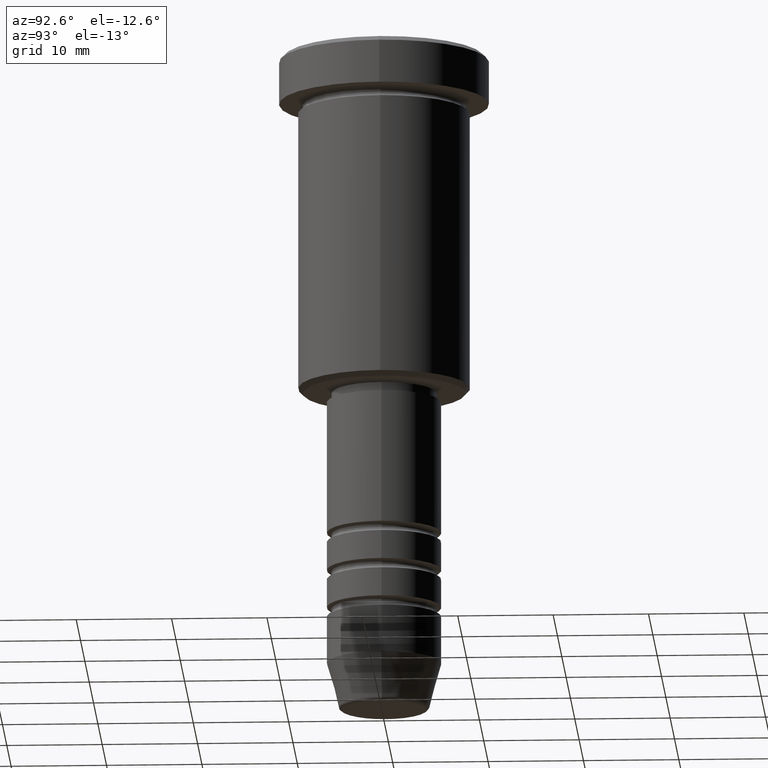
[diagram: clean part render]
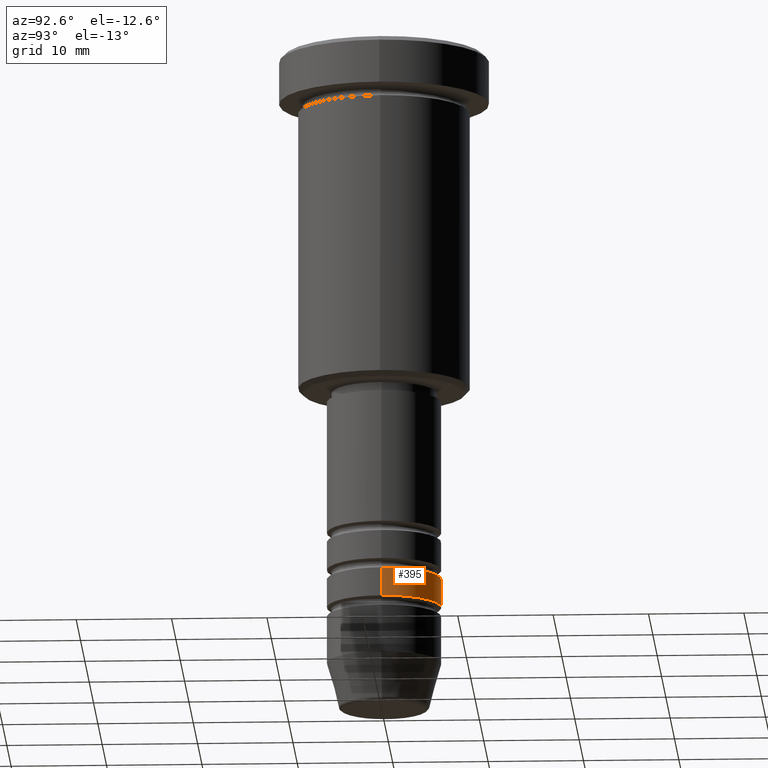
[diagram: same view with one face highlighted and labeled with its STEP entity id]
A machine part, auxiliary view. The second image highlights one B-rep face of the part: STEP entity #395.
In plain terms, the highlighted cylindrical surface (partial cylindrical patch) has radius 6 mm, axis along (-0, -0, 1).
Its self-contained STEP definition (entity closure, byte-faithful):
#37 = CARTESIAN_POINT ( 'NONE',  ( -6.000000000000000000, 7.347880794884119736E-16, 0.000000000000000000 ) ) ;
#49 = CARTESIAN_POINT ( 'NONE',  ( 0.000000000000000000, 0.000000000000000000, -58.99999999999999289 ) ) ;
#72 = DIRECTION ( 'NONE',  ( 1.000000000000000000, 0.000000000000000000, 0.000000000000000000 ) ) ;
#85 = ORIENTED_EDGE ( 'NONE', *, *, #1147, .T. ) ;
#156 = EDGE_CURVE ( 'NONE', #901, #719, #841, .T. ) ;
#168 = CYLINDRICAL_SURFACE ( 'NONE', #961, 6.000000000000000000 ) ;
#175 = CIRCLE ( 'NONE', #868, 6.000000000000000000 ) ;
#236 = DIRECTION ( 'NONE',  ( -0.000000000000000000, -0.000000000000000000, 1.000000000000000000 ) ) ;
#246 = VERTEX_POINT ( 'NONE', #702 ) ;
#336 = VECTOR ( 'NONE', #596, 1000.000000000000000 ) ;
#365 = VECTOR ( 'NONE', #854, 1000.000000000000000 ) ;
#395 = ADVANCED_FACE ( 'NONE', ( #912 ), #168, .T. ) ;
#398 = DIRECTION ( 'NONE',  ( -0.000000000000000000, -0.000000000000000000, 1.000000000000000000 ) ) ;
#429 = CARTESIAN_POINT ( 'NONE',  ( -5.999999999999999112, 7.347880794884118750E-16, -55.99999999999999289 ) ) ;
#470 = DIRECTION ( 'NONE',  ( -0.000000000000000000, -0.000000000000000000, 1.000000000000000000 ) ) ;
#552 = CARTESIAN_POINT ( 'NONE',  ( 0.000000000000000000, 0.000000000000000000, 0.000000000000000000 ) ) ;
#590 = EDGE_LOOP ( 'NONE', ( #85, #963, #1180, #1043 ) ) ;
#596 = DIRECTION ( 'NONE',  ( -0.000000000000000000, -0.000000000000000000, 1.000000000000000000 ) ) ;
#601 = CARTESIAN_POINT ( 'NONE',  ( 6.000000000000000000, 0.000000000000000000, 0.000000000000000000 ) ) ;
#665 = DIRECTION ( 'NONE',  ( 1.000000000000000000, 0.000000000000000000, 0.000000000000000000 ) ) ;
#688 = LINE ( 'NONE', #601, #336 ) ;
#702 = CARTESIAN_POINT ( 'NONE',  ( 6.000000000000000000, 0.000000000000000000, -58.99999999999999289 ) ) ;
#719 = VERTEX_POINT ( 'NONE', #429 ) ;
#758 = LINE ( 'NONE', #37, #365 ) ;
#841 = CIRCLE ( 'NONE', #939, 5.999999999999999112 ) ;
#854 = DIRECTION ( 'NONE',  ( -0.000000000000000000, -0.000000000000000000, 1.000000000000000000 ) ) ;
#868 = AXIS2_PLACEMENT_3D ( 'NONE', #49, #236, #973 ) ;
#901 = VERTEX_POINT ( 'NONE', #904 ) ;
#904 = CARTESIAN_POINT ( 'NONE',  ( 5.999999999999999112, 0.000000000000000000, -55.99999999999999289 ) ) ;
#912 = FACE_OUTER_BOUND ( 'NONE', #590, .T. ) ;
#939 = AXIS2_PLACEMENT_3D ( 'NONE', #1097, #398, #665 ) ;
#961 = AXIS2_PLACEMENT_3D ( 'NONE', #552, #470, #72 ) ;
#963 = ORIENTED_EDGE ( 'NONE', *, *, #1010, .T. ) ;
#973 = DIRECTION ( 'NONE',  ( 1.000000000000000000, 0.000000000000000000, 0.000000000000000000 ) ) ;
#977 = EDGE_CURVE ( 'NONE', #246, #901, #688, .T. ) ;
#1010 = EDGE_CURVE ( 'NONE', #1032, #719, #758, .T. ) ;
#1032 = VERTEX_POINT ( 'NONE', #1123 ) ;
#1043 = ORIENTED_EDGE ( 'NONE', *, *, #977, .F. ) ;
#1097 = CARTESIAN_POINT ( 'NONE',  ( 0.000000000000000000, 0.000000000000000000, -55.99999999999999289 ) ) ;
#1123 = CARTESIAN_POINT ( 'NONE',  ( -6.000000000000000000, 7.347880794884119736E-16, -58.99999999999999289 ) ) ;
#1147 = EDGE_CURVE ( 'NONE', #246, #1032, #175, .T. ) ;
#1180 = ORIENTED_EDGE ( 'NONE', *, *, #156, .F. ) ;